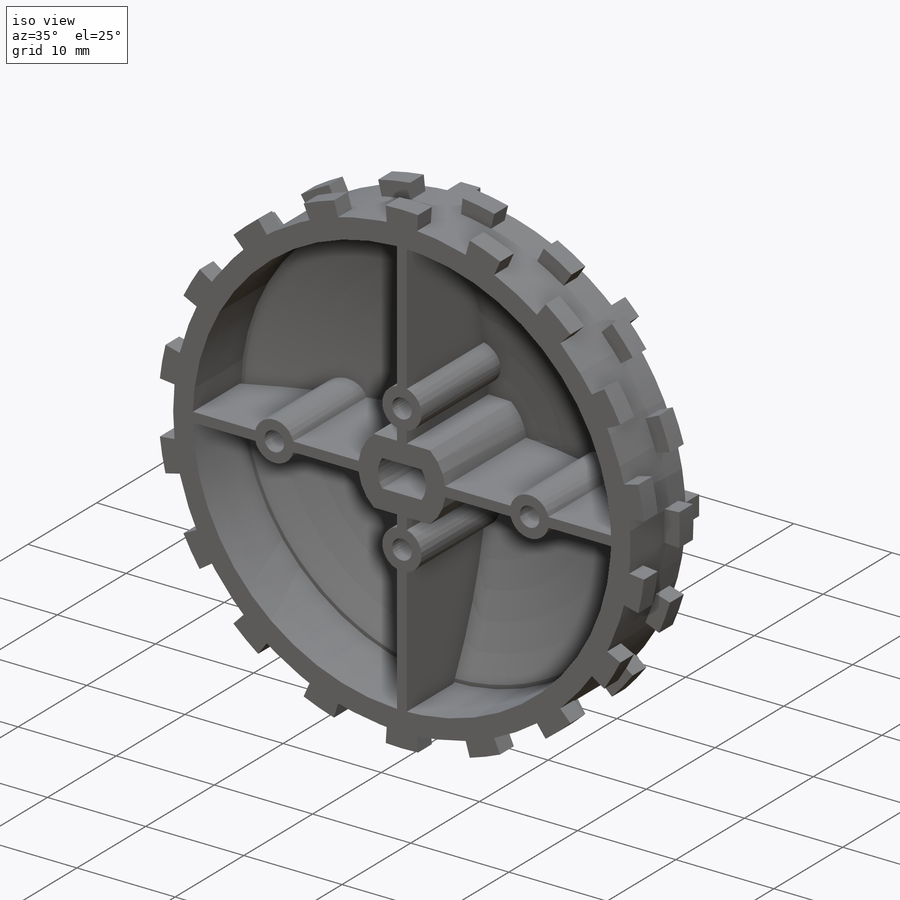
[diagram: iso view]
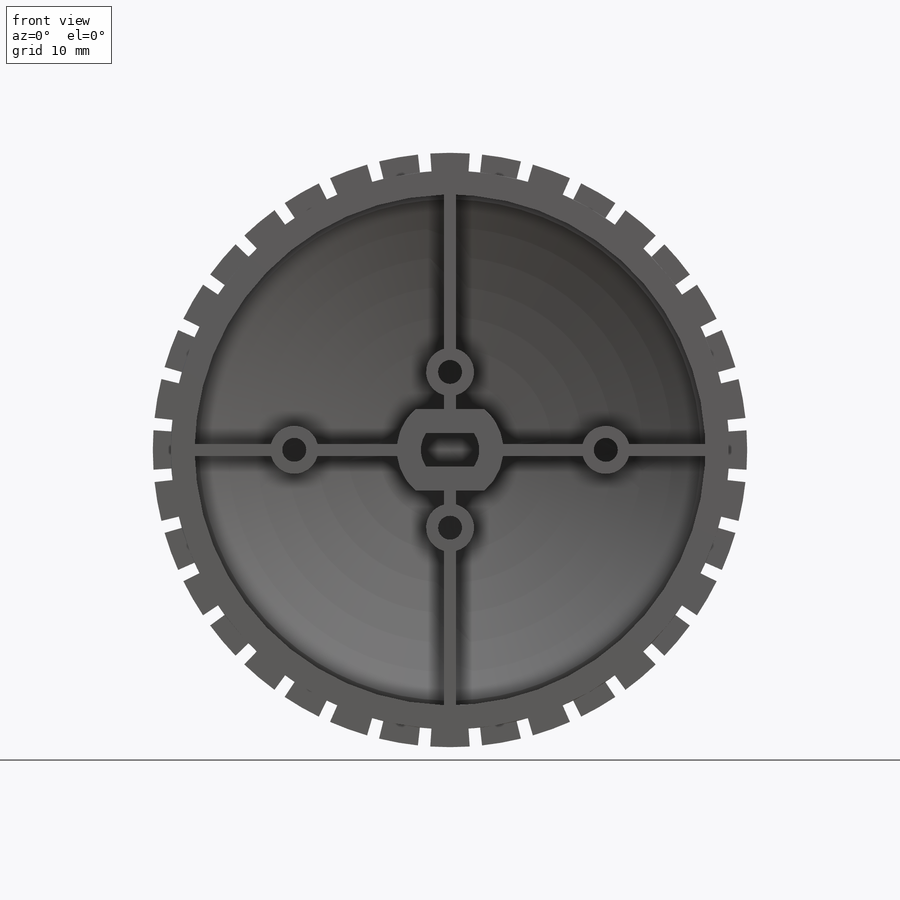
[diagram: front view]
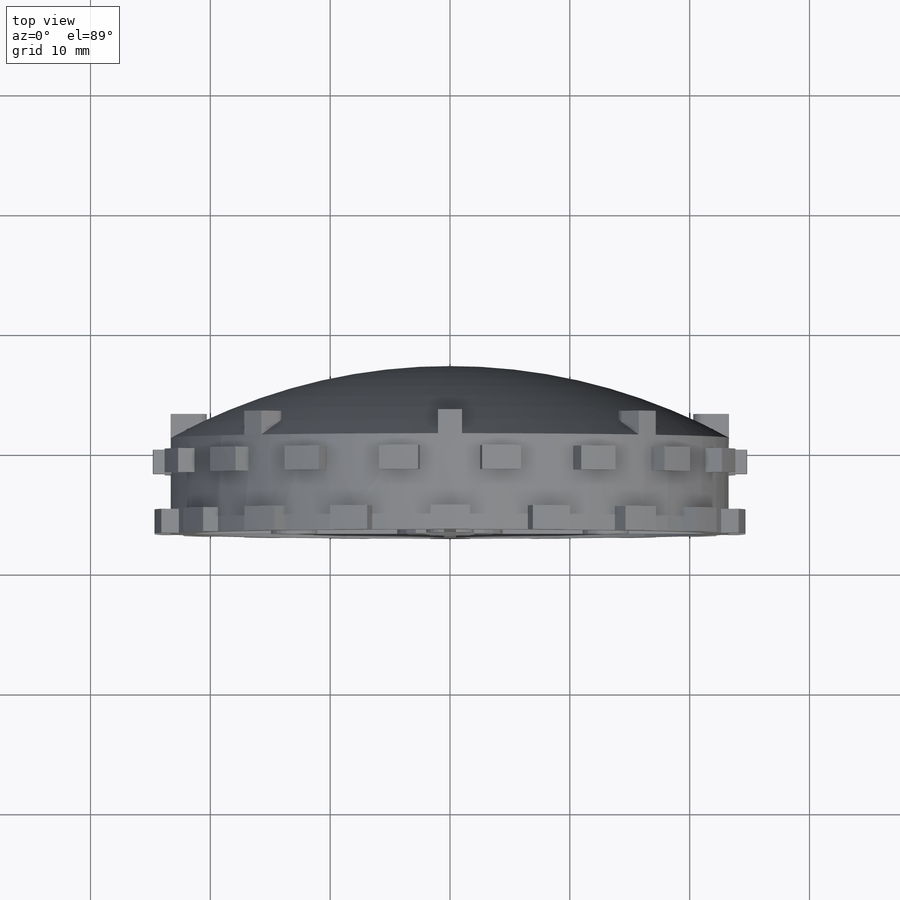
[diagram: top view]
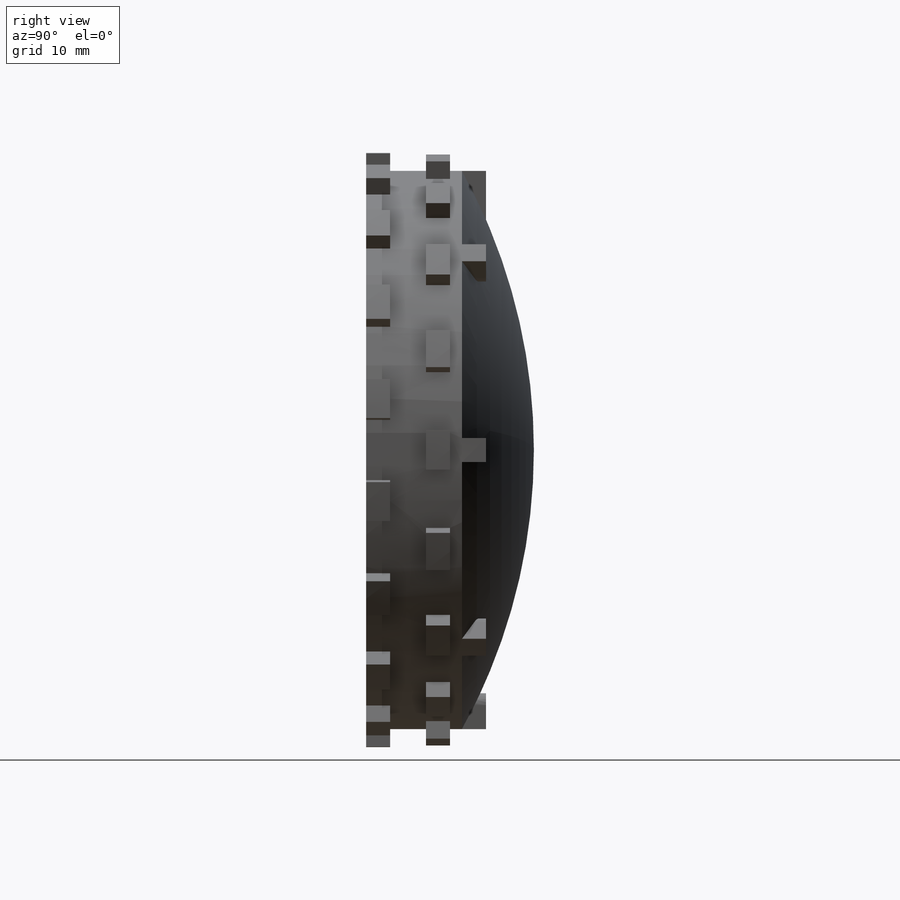
[diagram: right view]
SOLIDWORKS PART (.sldprt)
format: sldprt  version: not decoded by parser v0  size: 1,093,120 bytes
history: native  units: mm
features: sketch x14, cut_extrude x8, extrude x6, material x1, pattern_circular x1, dome x1 (+12 scaffold rows collapsed)
feature tree (43):
  scaffold x12  (default folders/planes/origin — collapsed)
  material  "ABS"
  sketch  "Sketch1"  dims[c1.D3=~1.526891mm c1.D4=~5.794477mm c1.D1=46.6mm c1.D2=19.0mm c1.D10=~2.691189mm c2.D4=19.0mm c2.D2=19.0mm c3.D4=~2.720294mm c3.D1=4.8mm c3.D2=2.9mm c3.D3=4.8mm c4.D4=15.0mm c4.D6=4.8mm c4.D3=2.4mm c5.D4=2.4mm c5.D6=12.0mm c6.D6=~148.831183deg c7.D6=~16.587078mm c8.D6=~31.168817deg c9.D6=~19.385443mm c10.D6=120.0deg c10.D7=~9.692721mm c11.D7=120.0deg c11.D8=~19.385443mm c12.D8=120.0deg c12.D7=~19.385443mm c13.D7=120.0deg c13.D8=4.0mm c13.D9=2.8mm c13.D10=~5.382379mm c13.D3=3.0mm c13.D4=4.3mm c13.D2=2.0mm c14.D4=3.0mm c15.D4=~55.140437deg c15.D5=~117.510289deg c16.D5=3.0]
  extrude  "Boss-Extrude3"  Depth=7mm
  cut_extrude  "Cut-Extrude7"  [1 undecoded]
  sketch  "Sketch1<18>"  dims[D1=12.0mm]
  cut_extrude  "Cut-Extrude9"  [1 undecoded]
  sketch  "Sketch1<19>"  dims[D1=11.0mm]
  cut_extrude  "Cut-Extrude11"  [1 undecoded]
  sketch  "Sketch1<22>"  dims[D1=17.0mm]
  cut_extrude  "Shaft Cutout"  [1 undecoded]
  sketch  "Sketch1<23>"  dims[D1=14.0mm]
  sketch  "Sketch9"  dims[c1.D1=50.5mm c1.D2=47.5mm c2.D1=47.5mm c2.D3=4.7mm c2.D4=~1.992792mm c3.D4=~3.749351deg c4.D4=~1.992792mm c5.D4=~3.749351deg c6.D4=~1.992792mm c7.D4=10.0deg c7.D5=~2.005778mm c7.D3=2.0mm c7.D6=0.0deg c7.D7=30.0mm c8.D5=~1.982431mm c9.D5=10.0deg c9.D3=~1.998096mm c10.D3=0.005deg c10.D6=1.5mm c10.D7=1.5mm c10.D1=~1.458806mm c11.D1=8.0deg c11.D2=~1.502929mm c12.D2=8.0deg]
  extrude  "Boss-Extrude5"  Depth=2mm
  extrude  "Boss-Extrude7"  [1 undecoded]
  sketch  "Sketch9<4>"  dims[D1=2.0mm D19=7.0mm]
  pattern_circular  "CirPattern2"  Count=18 Angle=20deg
  sketch  "Sketch10"
  extrude  "Boss-Extrude8"  Depth=1mm
  dome  "Dome1"
  cut_extrude  "Cut-Extrude14"  [1 undecoded]
  sketch  "Sketch1<27>"
  sketch  "Sketch11"  dims[c1.D1=~17.452315mm c2.D1=45.0deg c3.D1=46.6mm c4.D1=45.0deg c4.D2=46.6mm c5.D2=45.0deg c6.D2=5.0mm c6.D3=2.0mm c6.D5=5.0mm c7.D2=3.0mm c7.D5=2.0mm c7.D6=~1.98933mm c7.D4=8.0]
  extrude  "Boss-Extrude9"  Depth=2mm
  sketch  "Sketch12"
  cut_extrude  "Cut-Extrude15"  Depth=2mm
  sketch  "Sketch13"  dims[D1=2.0mm D2=2.0mm D3=2.0mm]
  cut_extrude  "Cut-Extrude16"  [1 undecoded]
  sketch  "Sketch14"  dims[c1.D2=2.0mm c1.D3=~5.149935mm c1.D5=~2.472684mm c1.D6=2.0mm c1.D1=1.0mm c2.D3=1.0mm c2.D4=6.5mm c2.D5=1.0mm c2.D7=13.0mm c2.D8=1.0mm]
  extrude  "Boss-Extrude10"  [1 undecoded]
  sketch  "Sketch15"
  cut_extrude  "Cut-Extrude17"  Depth=2mm
decode coverage: 17 of 30 modeling features carry decoded parameters
note: ~ marks probable driven/reference dimensions
note: 8 parameter values undecoded
summary: no parameter record found for 8 features
note: suppression state not decoded; provenance and decode notes live in map.json
